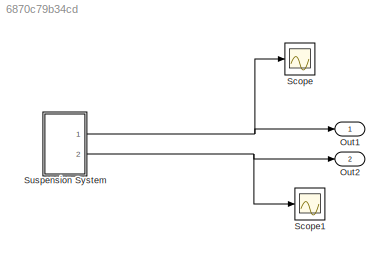
MODEL slx_6870c79b34cd
KIND model
CONFIG AbsTol = auto
CONFIG EnableMultiTasking = off
CONFIG FixedStep = 0.001
CONFIG MaxStep = auto
CONFIG MinStep = auto
CONFIG RelTol = 1e-3
CONFIG SampleTimeConstraint = Unconstrained
CONFIG SolverName = FixedStepAuto
CONFIG StartTime = 0.0
CONFIG StopTime = 100
WORKSPACE source: mxarray member
WORKSPACE B = 1
WORKSPACE Ks = 1
WORKSPACE Kw = 1
WORKSPACE M1 = 1
WORKSPACE M2 = 1
BLOCK [Outport] Out1
BLOCK [Outport] Out2
  Port = 2
BLOCK [Scope] Scope
  Floating = off
  NumInputPorts = 1
  Ports = [1]
  ScopeSpecificationString = Simulink.scopes.TimeScopeBlockCfg('CurrentConfiguration', extmgr.ConfigurationSet(extmgr.Configuration('Core','General UI',true),extmgr.Configuration('Core','Source UI',true),extmgr.Configuration('Sources','WiredSimulink',true),extmgr.Configuration('Visuals','Time Domain',true,'SerializedDisplays',{struct('MinYLimReal','-0.22443','MaxYLimReal','2.01988','YLabelReal','','MinYLimMag','0.00000','MaxY...<+1350ch>
BLOCK [Scope] Scope1
  Floating = off
  NumInputPorts = 1
  Ports = [1]
  ScopeSpecificationString = Simulink.scopes.TimeScopeBlockCfg('CurrentConfiguration', extmgr.ConfigurationSet(extmgr.Configuration('Core','General UI',true),extmgr.Configuration('Core','Source UI',true),extmgr.Configuration('Sources','WiredSimulink',true,'DataLoggingVariableName','ScopeData1'),extmgr.Configuration('Visuals','Time Domain',true,'SerializedDisplays',{struct('MinYLimReal','-0.18467','MaxYLimReal','1.66207','YLab...<+1370ch>
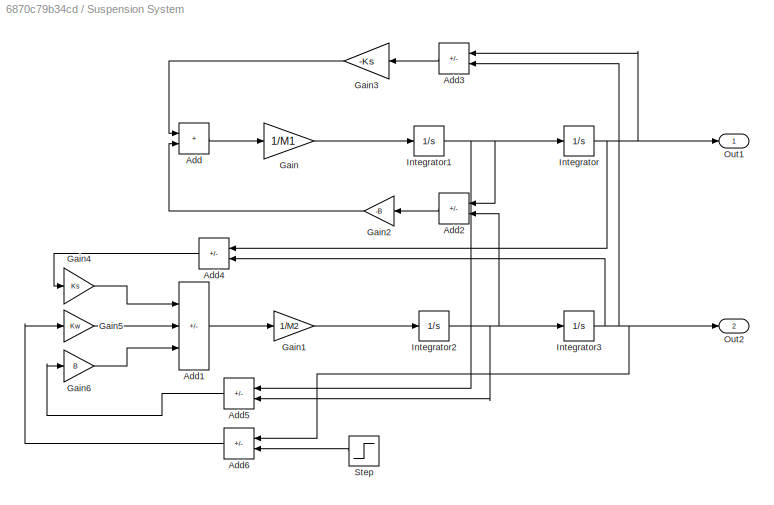
BLOCK [SubSystem] Suspension System 
  Ports = [0, 2]
  RequestExecContextInheritance = off
BLOCK [Sum] Suspension System /Add
  IconShape = rectangular
  Ports = [2, 1]
BLOCK [Sum] Suspension System /Add1
  IconShape = rectangular
  Inputs = +-+
  Ports = [3, 1]
BLOCK [Sum] Suspension System /Add2
  IconShape = rectangular
  Inputs = +-
  NameLocation = top
  Ports = [2, 1]
BLOCK [Sum] Suspension System /Add3
  IconShape = rectangular
  Inputs = +-
  NameLocation = top
  Ports = [2, 1]
BLOCK [Sum] Suspension System /Add4
  IconShape = rectangular
  Inputs = +-
  NameLocation = top
  Ports = [2, 1]
BLOCK [Sum] Suspension System /Add5
  IconShape = rectangular
  Inputs = +-
  NameLocation = top
  Ports = [2, 1]
BLOCK [Sum] Suspension System /Add6
  IconShape = rectangular
  Inputs = +-
  NameLocation = top
  Ports = [2, 1]
BLOCK [Gain] Suspension System /Gain
  Gain = 1/M1
BLOCK [Gain] Suspension System /Gain1
  Gain = 1/M2
BLOCK [Gain] Suspension System /Gain2
  Gain = -B
  NameLocation = top
BLOCK [Gain] Suspension System /Gain3
  Gain = -Ks
  NameLocation = top
BLOCK [Gain] Suspension System /Gain4
  Gain = Ks
BLOCK [Gain] Suspension System /Gain5
  Gain = Kw
BLOCK [Gain] Suspension System /Gain6
  Gain = B
BLOCK [Integrator] Suspension System /Integrator
  Ports = [1, 1]
BLOCK [Integrator] Suspension System /Integrator1
  Ports = [1, 1]
BLOCK [Integrator] Suspension System /Integrator2
  Ports = [1, 1]
BLOCK [Integrator] Suspension System /Integrator3
  Ports = [1, 1]
BLOCK [Outport] Suspension System /Out1
BLOCK [Outport] Suspension System /Out2
  Port = 2
BLOCK [Step] Suspension System /Step
  NameLocation = top
  SampleTime = 0
LINE Suspension System /Add1:1 -> Suspension System /Gain1:1
LINE Suspension System /Add2:1 -> Suspension System /Gain2:1
LINE Suspension System /Add3:1 -> Suspension System /Gain3:1
LINE Suspension System /Add4:1 -> Suspension System /Gain4:1
LINE Suspension System /Add5:1 -> Suspension System /Gain6:1
LINE Suspension System /Add6:1 -> Suspension System /Gain5:1
LINE Suspension System /Add:1 -> Suspension System /Gain:1
LINE Suspension System /Gain1:1 -> Suspension System /Integrator2:1
LINE Suspension System /Gain2:1 -> Suspension System /Add:2
LINE Suspension System /Gain3:1 -> Suspension System /Add:1
LINE Suspension System /Gain4:1 -> Suspension System /Add1:1
LINE Suspension System /Gain5:1 -> Suspension System /Add1:2
LINE Suspension System /Gain6:1 -> Suspension System /Add1:3
LINE Suspension System /Gain:1 -> Suspension System /Integrator1:1
NET Suspension System /Integrator1:1 -> Suspension System /Add2:1, Suspension System /Add5:1, Suspension System /Integrator:1
NET Suspension System /Integrator2:1 -> Suspension System /Add2:2, Suspension System /Add5:2, Suspension System /Integrator3:1
NET Suspension System /Integrator3:1 -> Suspension System /Add3:2, Suspension System /Add4:2, Suspension System /Add6:1, Suspension System /Out2:1
NET Suspension System /Integrator:1 -> Suspension System /Add3:1, Suspension System /Add4:1, Suspension System /Out1:1
LINE Suspension System /Step:1 -> Suspension System /Add6:2
NET Suspension System :1 -> Out1:1, Scope:1
NET Suspension System :2 -> Out2:1, Scope1:1
note: NET lines group one-source signal fan-out (src -> all destinations, sorted); 1:1 wires keep LINE
